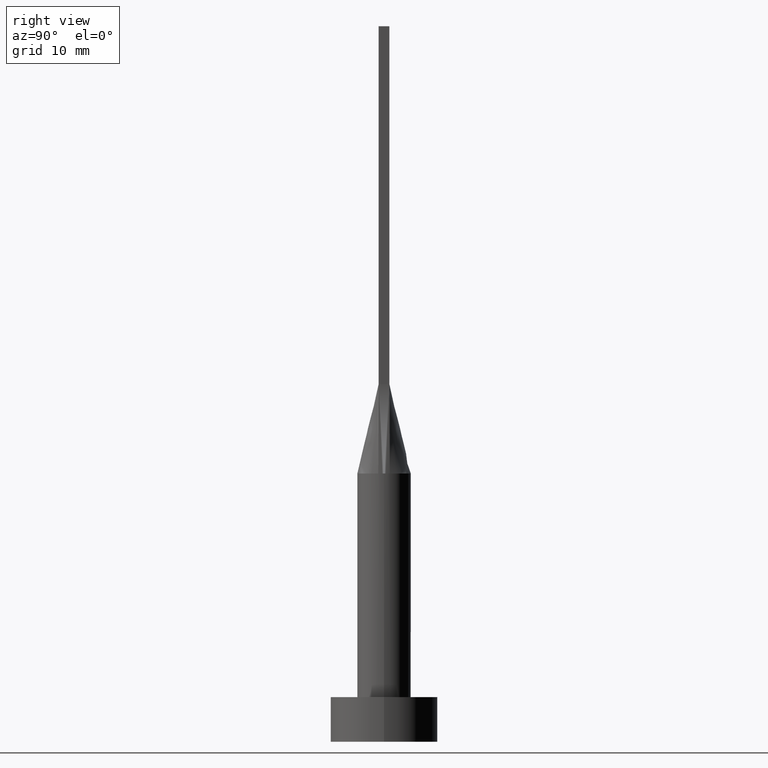
[diagram: clean part render]
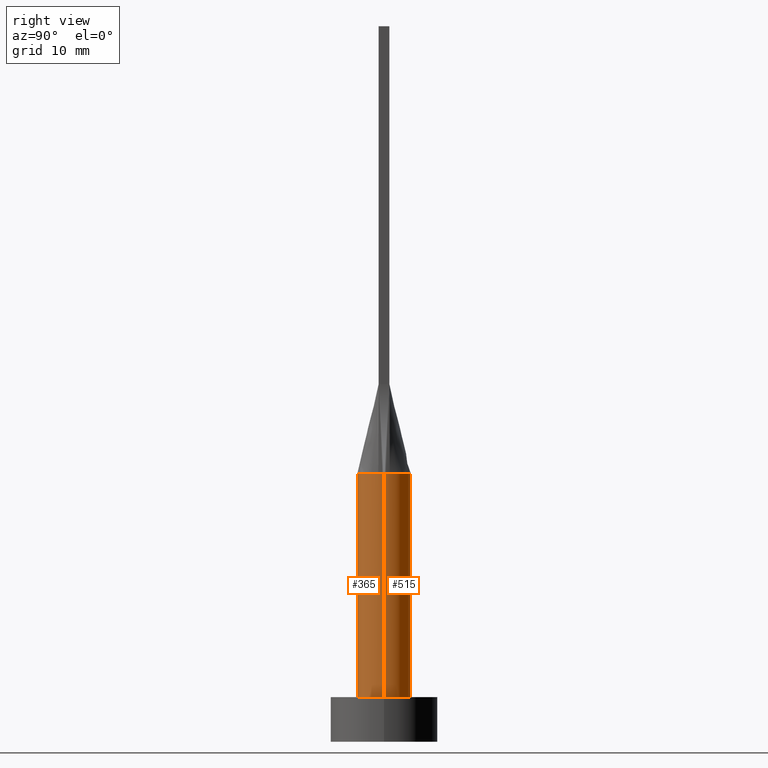
[diagram: same view with one multi-face feature highlighted, each face labeled with its STEP entity id]
A machine part, right view. The highlighted faces form ONE feature: a constant-radius fillet chain: 2 tangent blend faces with common blend radius 3 mm. The faces share edges in the B-rep.
Their STEP definitions:
[1] entity #365 (Cylinder):
#23 = AXIS2_PLACEMENT_3D ( 'NONE', #389, #252, #581 ) ;
#34 = CARTESIAN_POINT ( 'NONE',  ( -2.999603793582328315, -7.025298958605770567E-16, 30.00000000000000355 ) ) ;
#40 = ORIENTED_EDGE ( 'NONE', *, *, #543, .F. ) ;
#46 = AXIS2_PLACEMENT_3D ( 'NONE', #380, #290, #512 ) ;
#48 = DIRECTION ( 'NONE',  ( -0.000000000000000000, -0.000000000000000000, -1.000000000000000000 ) ) ;
#51 = LINE ( 'NONE', #167, #165 ) ;
#70 = FACE_OUTER_BOUND ( 'NONE', #321, .T. ) ;
#74 = CIRCLE ( 'NONE', #23, 3.000000000000000444 ) ;
#86 = VERTEX_POINT ( 'NONE', #484 ) ;
#102 = LINE ( 'NONE', #574, #438 ) ;
#113 = AXIS2_PLACEMENT_3D ( 'NONE', #311, #524, #152 ) ;
#119 = EDGE_CURVE ( 'NONE', #204, #488, #394, .T. ) ;
#126 = EDGE_CURVE ( 'NONE', #390, #496, #102, .T. ) ;
#139 = ORIENTED_EDGE ( 'NONE', *, *, #119, .F. ) ;
#152 = DIRECTION ( 'NONE',  ( 1.000000000000000000, -8.881784197001252323E-15, 0.000000000000000000 ) ) ;
#165 = VECTOR ( 'NONE', #48, 1000.000000000000000 ) ;
#167 = CARTESIAN_POINT ( 'NONE',  ( -3.000000000000000444, 0.000000000000000000, 30.00000000000000355 ) ) ;
#180 = CIRCLE ( 'NONE', #113, 3.000000000000000444 ) ;
#190 = CARTESIAN_POINT ( 'NONE',  ( 0.000000000000000000, 0.000000000000000000, 30.00000000000000355 ) ) ;
#200 = CARTESIAN_POINT ( 'NONE',  ( 3.000000000000000444, 3.673940397442060361E-16, 5.000000000000000000 ) ) ;
#204 = VERTEX_POINT ( 'NONE', #34 ) ;
#213 = ORIENTED_EDGE ( 'NONE', *, *, #409, .T. ) ;
#251 = ORIENTED_EDGE ( 'NONE', *, *, #445, .F. ) ;
#252 = DIRECTION ( 'NONE',  ( 0.000000000000000000, 0.000000000000000000, 1.000000000000000000 ) ) ;
#269 = CARTESIAN_POINT ( 'NONE',  ( 2.999603793582328759, 7.166726372340513095E-16, 30.00000000000000355 ) ) ;
#274 = DIRECTION ( 'NONE',  ( 0.000000000000000000, 0.000000000000000000, 1.000000000000000000 ) ) ;
#286 = ORIENTED_EDGE ( 'NONE', *, *, #485, .T. ) ;
#290 = DIRECTION ( 'NONE',  ( -0.000000000000000000, -0.000000000000000000, -1.000000000000000000 ) ) ;
#311 = CARTESIAN_POINT ( 'NONE',  ( 0.000000000000000000, 0.000000000000000000, 30.00000000000000355 ) ) ;
#315 = CARTESIAN_POINT ( 'NONE',  ( 0.000000000000000000, 0.000000000000000000, 5.000000000000000000 ) ) ;
#321 = EDGE_LOOP ( 'NONE', ( #504, #40, #251, #139, #213, #286 ) ) ;
#364 = DIRECTION ( 'NONE',  ( 0.000000000000000000, 0.000000000000000000, 1.000000000000000000 ) ) ;
#365 = ADVANCED_FACE ( 'NONE', ( #70 ), #427, .T. ) ;
#380 = CARTESIAN_POINT ( 'NONE',  ( 0.000000000000000000, 0.000000000000000000, 30.00000000000000355 ) ) ;
#389 = CARTESIAN_POINT ( 'NONE',  ( 0.000000000000000000, 0.000000000000000000, 30.00000000000000355 ) ) ;
#390 = VERTEX_POINT ( 'NONE', #269 ) ;
#394 = CIRCLE ( 'NONE', #575, 3.000000000000000444 ) ;
#406 = DIRECTION ( 'NONE',  ( 1.000000000000000000, 0.000000000000000000, 0.000000000000000000 ) ) ;
#409 = EDGE_CURVE ( 'NONE', #204, #86, #51, .T. ) ;
#422 = CARTESIAN_POINT ( 'NONE',  ( 2.931332910560268790, -0.6395638358681950963, 30.00000000000000355 ) ) ;
#427 = CYLINDRICAL_SURFACE ( 'NONE', #46, 3.000000000000000444 ) ;
#438 = VECTOR ( 'NONE', #566, 1000.000000000000000 ) ;
#445 = EDGE_CURVE ( 'NONE', #488, #520, #74, .T. ) ;
#448 = CARTESIAN_POINT ( 'NONE',  ( -2.931315536094174057, -0.6395601373676296220, 30.00000000000000355 ) ) ;
#484 = CARTESIAN_POINT ( 'NONE',  ( -3.000000000000000444, 0.000000000000000000, 5.000000000000000000 ) ) ;
#485 = EDGE_CURVE ( 'NONE', #86, #496, #577, .T. ) ;
#488 = VERTEX_POINT ( 'NONE', #448 ) ;
#496 = VERTEX_POINT ( 'NONE', #200 ) ;
#499 = DIRECTION ( 'NONE',  ( 1.000000000000000000, 0.000000000000000000, 0.000000000000000000 ) ) ;
#504 = ORIENTED_EDGE ( 'NONE', *, *, #126, .F. ) ;
#512 = DIRECTION ( 'NONE',  ( -1.000000000000000000, 0.000000000000000000, 0.000000000000000000 ) ) ;
#520 = VERTEX_POINT ( 'NONE', #422 ) ;
#524 = DIRECTION ( 'NONE',  ( 0.000000000000000000, 0.000000000000000000, 1.000000000000000000 ) ) ;
#543 = EDGE_CURVE ( 'NONE', #520, #390, #180, .T. ) ;
#548 = AXIS2_PLACEMENT_3D ( 'NONE', #315, #274, #406 ) ;
#566 = DIRECTION ( 'NONE',  ( -0.000000000000000000, -0.000000000000000000, -1.000000000000000000 ) ) ;
#574 = CARTESIAN_POINT ( 'NONE',  ( 3.000000000000000444, 3.673940397442060361E-16, 30.00000000000000355 ) ) ;
#575 = AXIS2_PLACEMENT_3D ( 'NONE', #190, #364, #499 ) ;
#577 = CIRCLE ( 'NONE', #548, 3.000000000000000444 ) ;
#581 = DIRECTION ( 'NONE',  ( 1.000000000000000000, 0.000000000000000000, 0.000000000000000000 ) ) ;
[2] entity #515 (Cylinder):
#3 = EDGE_LOOP ( 'NONE', ( #528, #130, #449, #303, #386, #399 ) ) ;
#10 = CARTESIAN_POINT ( 'NONE',  ( -2.518011668798964653, 1.657305971825549840, 30.00000000000000711 ) ) ;
#21 = VERTEX_POINT ( 'NONE', #229 ) ;
#34 = CARTESIAN_POINT ( 'NONE',  ( -2.999603793582328315, -7.025298958605770567E-16, 30.00000000000000355 ) ) ;
#37 = CARTESIAN_POINT ( 'NONE',  ( 1.517787371616672099, 2.616501225271827824, 30.00000000000000711 ) ) ;
#48 = DIRECTION ( 'NONE',  ( -0.000000000000000000, -0.000000000000000000, -1.000000000000000000 ) ) ;
#51 = LINE ( 'NONE', #167, #165 ) ;
#57 = VERTEX_POINT ( 'NONE', #272 ) ;
#59 = DIRECTION ( 'NONE',  ( 1.000000000000000000, 0.000000000000000000, 0.000000000000000000 ) ) ;
#71 = CARTESIAN_POINT ( 'NONE',  ( 1.829136458871247761, 2.402980488111650992, 30.00000000000001066 ) ) ;
#72 = CIRCLE ( 'NONE', #131, 3.000000000000000444 ) ;
#86 = VERTEX_POINT ( 'NONE', #484 ) ;
#102 = LINE ( 'NONE', #574, #438 ) ;
#105 = CARTESIAN_POINT ( 'NONE',  ( -2.792624347712117761, 1.135030881087315313, 30.00000000000001066 ) ) ;
#118 = CARTESIAN_POINT ( 'NONE',  ( 2.328745122427009040, 1.922758842442225946, 30.00000000000000355 ) ) ;
#126 = EDGE_CURVE ( 'NONE', #390, #496, #102, .T. ) ;
#130 = ORIENTED_EDGE ( 'NONE', *, *, #126, .T. ) ;
#131 = AXIS2_PLACEMENT_3D ( 'NONE', #549, #187, #59 ) ;
#147 = CIRCLE ( 'NONE', #481, 3.000000000000000444 ) ;
#165 = VECTOR ( 'NONE', #48, 1000.000000000000000 ) ;
#167 = CARTESIAN_POINT ( 'NONE',  ( -3.000000000000000444, 0.000000000000000000, 30.00000000000000355 ) ) ;
#187 = DIRECTION ( 'NONE',  ( 0.000000000000000000, 0.000000000000000000, 1.000000000000000000 ) ) ;
#200 = CARTESIAN_POINT ( 'NONE',  ( 3.000000000000000444, 3.673940397442060361E-16, 5.000000000000000000 ) ) ;
#204 = VERTEX_POINT ( 'NONE', #34 ) ;
#206 = CARTESIAN_POINT ( 'NONE',  ( -1.829136458871247761, 2.402980488111649660, 30.00000000000000000 ) ) ;
#214 = CARTESIAN_POINT ( 'NONE',  ( -1.517787371616671654, 2.616501225271827380, 30.00000000000001066 ) ) ;
#229 = CARTESIAN_POINT ( 'NONE',  ( 2.931303352270923757, 0.6395574164693091923, 30.00000000000000355 ) ) ;
#236 = EDGE_CURVE ( 'NONE', #390, #21, #72, .T. ) ;
#238 = DIRECTION ( 'NONE',  ( -0.000000000000000000, -0.000000000000000000, -1.000000000000000000 ) ) ;
#247 = DIRECTION ( 'NONE',  ( -1.000000000000000000, 0.000000000000000000, 0.000000000000000000 ) ) ;
#263 = CARTESIAN_POINT ( 'NONE',  ( 0.000000000000000000, 0.000000000000000000, 30.00000000000000355 ) ) ;
#265 = EDGE_CURVE ( 'NONE', #496, #86, #147, .T. ) ;
#269 = CARTESIAN_POINT ( 'NONE',  ( 2.999603793582328759, 7.166726372340513095E-16, 30.00000000000000355 ) ) ;
#272 = CARTESIAN_POINT ( 'NONE',  ( -2.931320679040856803, 0.6395611071856786012, 30.00000000000000355 ) ) ;
#275 = CIRCLE ( 'NONE', #439, 3.000000000000000444 ) ;
#303 = ORIENTED_EDGE ( 'NONE', *, *, #409, .F. ) ;
#320 = CARTESIAN_POINT ( 'NONE',  ( 0.000000000000000000, 0.000000000000000000, 5.000000000000000000 ) ) ;
#328 = CARTESIAN_POINT ( 'NONE',  ( 0.4026715616377294915, 2.999999999999999556, 30.00000000000000711 ) ) ;
#331 = CYLINDRICAL_SURFACE ( 'NONE', #366, 3.000000000000000444 ) ;
#346 = CARTESIAN_POINT ( 'NONE',  ( -0.4026715616377299356, 2.999999999999999556, 30.00000000000001066 ) ) ;
#348 = CARTESIAN_POINT ( 'NONE',  ( 2.878980386154874616, 0.8781411751610636029, 30.00000000000000355 ) ) ;
#361 = DIRECTION ( 'NONE',  ( 0.000000000000000000, 0.000000000000000000, 1.000000000000000000 ) ) ;
#366 = AXIS2_PLACEMENT_3D ( 'NONE', #466, #238, #247 ) ;
#383 = CARTESIAN_POINT ( 'NONE',  ( 2.931303352270923757, 0.6395574164693091923, 30.00000000000000355 ) ) ;
#384 = CARTESIAN_POINT ( 'NONE',  ( -2.328745122427008152, 1.922758842442225280, 30.00000000000001066 ) ) ;
#386 = ORIENTED_EDGE ( 'NONE', *, *, #432, .F. ) ;
#390 = VERTEX_POINT ( 'NONE', #269 ) ;
#393 = CARTESIAN_POINT ( 'NONE',  ( -2.931320679040856803, 0.6395611071856786012, 30.00000000000000355 ) ) ;
#399 = ORIENTED_EDGE ( 'NONE', *, *, #532, .F. ) ;
#402 = DIRECTION ( 'NONE',  ( 1.000000000000000000, 0.000000000000000000, 0.000000000000000000 ) ) ;
#409 = EDGE_CURVE ( 'NONE', #204, #86, #51, .T. ) ;
#432 = EDGE_CURVE ( 'NONE', #57, #204, #275, .T. ) ;
#434 = CARTESIAN_POINT ( 'NONE',  ( -0.8041209001220690489, 2.916015559847871419, 30.00000000000001066 ) ) ;
#438 = VECTOR ( 'NONE', #566, 1000.000000000000000 ) ;
#439 = AXIS2_PLACEMENT_3D ( 'NONE', #263, #491, #402 ) ;
#449 = ORIENTED_EDGE ( 'NONE', *, *, #265, .T. ) ;
#458 = CARTESIAN_POINT ( 'NONE',  ( -2.878980386154874616, 0.8781411751610629368, 30.00000000000001421 ) ) ;
#466 = CARTESIAN_POINT ( 'NONE',  ( 0.000000000000000000, 0.000000000000000000, 30.00000000000000355 ) ) ;
#469 = CARTESIAN_POINT ( 'NONE',  ( 2.518011668798964209, 1.657305971825549840, 30.00000000000000355 ) ) ;
#476 = CARTESIAN_POINT ( 'NONE',  ( 2.792624347712116872, 1.135030881087315979, 30.00000000000001066 ) ) ;
#481 = AXIS2_PLACEMENT_3D ( 'NONE', #320, #361, #490 ) ;
#484 = CARTESIAN_POINT ( 'NONE',  ( -3.000000000000000444, 0.000000000000000000, 5.000000000000000000 ) ) ;
#490 = DIRECTION ( 'NONE',  ( 1.000000000000000000, 0.000000000000000000, 0.000000000000000000 ) ) ;
#491 = DIRECTION ( 'NONE',  ( 0.000000000000000000, 0.000000000000000000, 1.000000000000000000 ) ) ;
#496 = VERTEX_POINT ( 'NONE', #200 ) ;
#505 = FACE_OUTER_BOUND ( 'NONE', #3, .T. ) ;
#515 = ADVANCED_FACE ( 'NONE', ( #505 ), #331, .T. ) ;
#528 = ORIENTED_EDGE ( 'NONE', *, *, #236, .F. ) ;
#531 = B_SPLINE_CURVE_WITH_KNOTS ( 'NONE', 3,
 ( #383, #348, #476, #469, #118, #71, #37, #555, #328, #346, #434, #214, #206, #384, #10, #105, #458, #393 ),
 .UNSPECIFIED., .F., .F.,
 ( 4, 2, 2, 2, 2, 2, 2, 2, 4 ),
 ( 0.000000000000000000, 0.1250000000000000000, 0.2500000000000000000, 0.3750000000000000000, 0.5000000000000000000, 0.6250000000000000000, 0.7500000000000000000, 0.8750000000000000000, 1.000000000000000000 ),
 .UNSPECIFIED. ) ;
#532 = EDGE_CURVE ( 'NONE', #21, #57, #531, .T. ) ;
#549 = CARTESIAN_POINT ( 'NONE',  ( 0.000000000000000000, 0.000000000000000000, 30.00000000000000355 ) ) ;
#555 = CARTESIAN_POINT ( 'NONE',  ( 0.8041209001220689379, 2.916015559847871863, 30.00000000000001066 ) ) ;
#566 = DIRECTION ( 'NONE',  ( -0.000000000000000000, -0.000000000000000000, -1.000000000000000000 ) ) ;
#574 = CARTESIAN_POINT ( 'NONE',  ( 3.000000000000000444, 3.673940397442060361E-16, 30.00000000000000355 ) ) ;